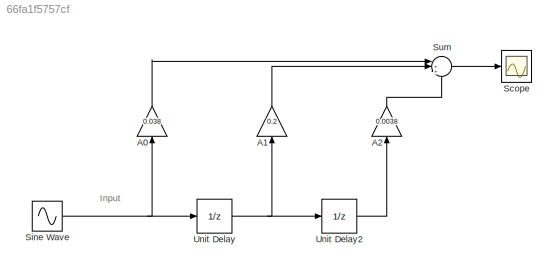
MODEL slx_66fa1f5757cf
KIND model
BLOCK [Gain] A0
  Gain = 0.038
  OutDataTypeStr = Inherit: Inherit via internal rule
  ParamDataTypeStr = Inherit: Inherit via internal rule
  SaturateOnIntegerOverflow = off
BLOCK [Gain] A1
  Gain = 0.2
  OutDataTypeStr = Inherit: Inherit via internal rule
  ParamDataTypeStr = Inherit: Inherit via internal rule
  SaturateOnIntegerOverflow = off
BLOCK [Gain] A2
  Gain = 0.0038
  OutDataTypeStr = Inherit: Inherit via internal rule
  ParamDataTypeStr = Inherit: Inherit via internal rule
  SaturateOnIntegerOverflow = off
BLOCK [Scope] Scope
  Floating = off
  NumInputPorts = 1
  Ports = [1]
  ShowLegends = off
  TimeRange = 1
  YMax = 0.0018
  YMin = 0
BLOCK [Sin] Sine Wave
  Frequency = 1200
  Ports = [0, 1]
  SampleTime = 0
BLOCK [Sum] Sum
  IconShape = round
  InputSameDT = off
  Inputs = |+++
  OutDataTypeStr = Inherit: Inherit via internal rule
  Ports = [3, 1]
  SaturateOnIntegerOverflow = off
BLOCK [UnitDelay] Unit Delay
  InputProcessing = Elements as channels (sample based)
  SampleTime = -1
BLOCK [UnitDelay] Unit Delay2
  InputProcessing = Elements as channels (sample based)
  SampleTime = -1
ANNOTATION (root): Input
LINE A0:1 -> Sum:1
LINE A1:1 -> Sum:2
LINE A2:1 -> Sum:3
NET Sine Wave:1 -> A0:1, Unit Delay:1
LINE Sum:1 -> Scope:1
LINE Unit Delay2:1 -> A2:1
NET Unit Delay:1 -> A1:1, Unit Delay2:1
note: NET lines group one-source signal fan-out (src -> all destinations, sorted); 1:1 wires keep LINE
